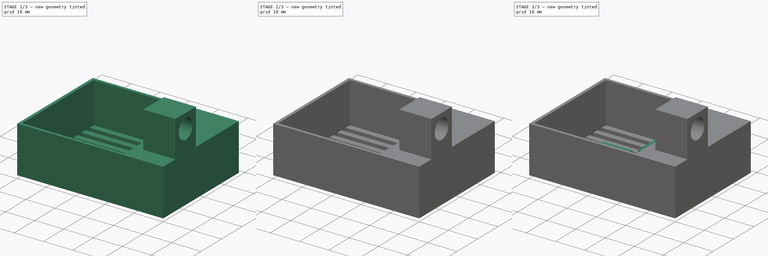
[diagram: build sequence overview — one tinted view per stage of 3, left to right]
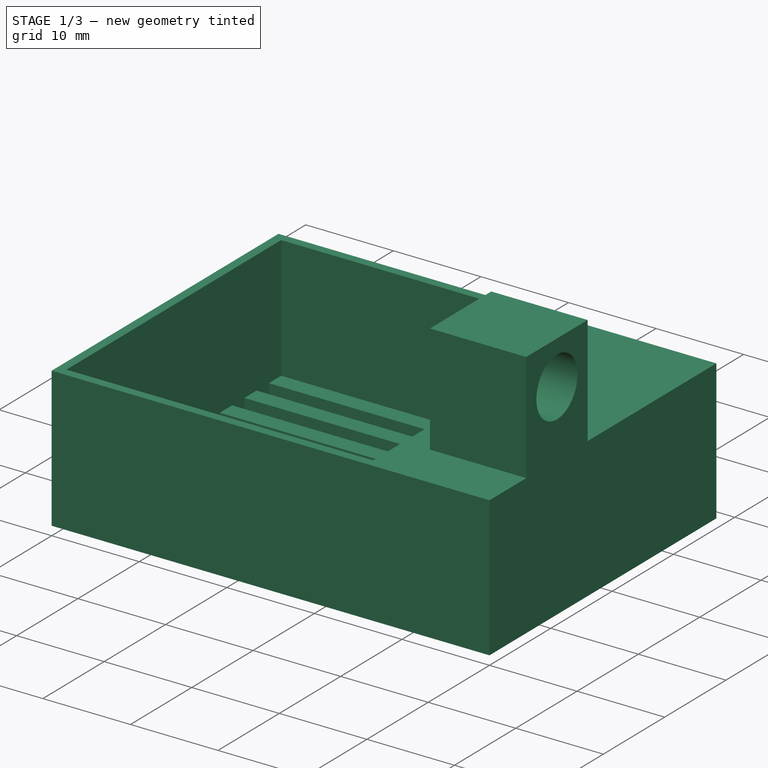
[diagram: stage 1 of 3 — iso view after this stage's code; geometry added in this stage tinted green]
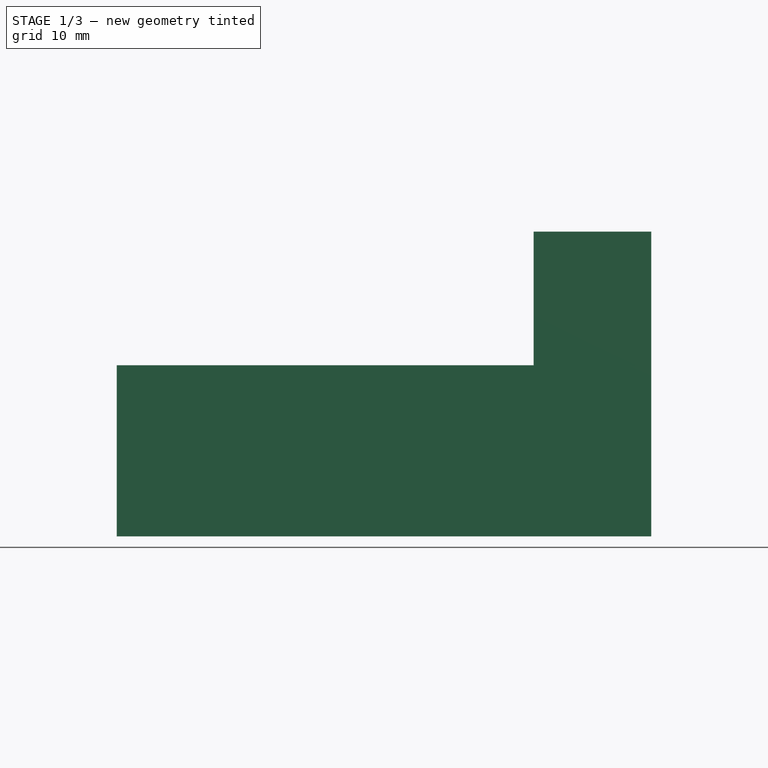
[diagram: stage 1 of 3 — front view after this stage's code; geometry added in this stage tinted green]
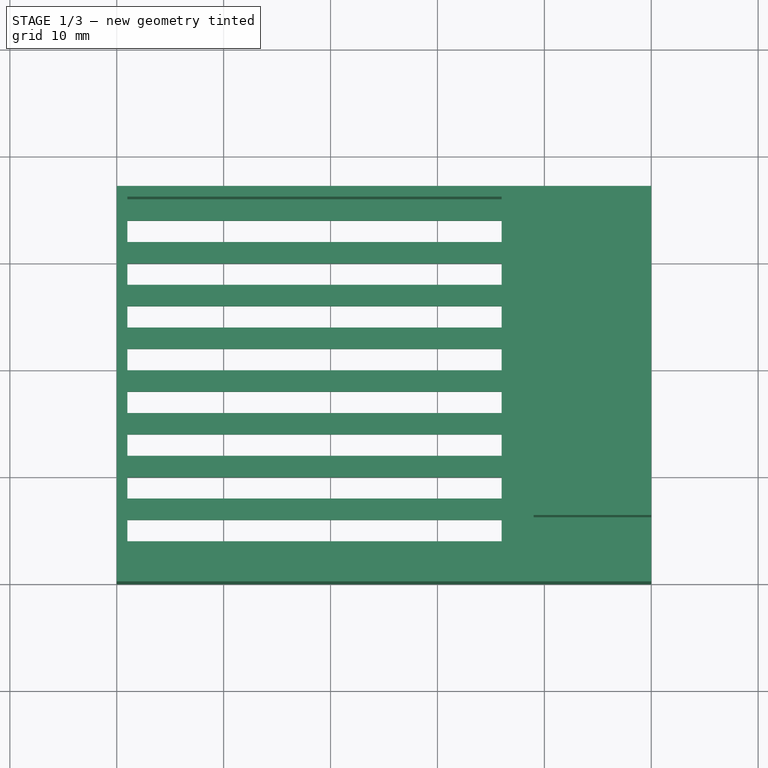
[diagram: stage 1 of 3 — top view after this stage's code; geometry added in this stage tinted green]
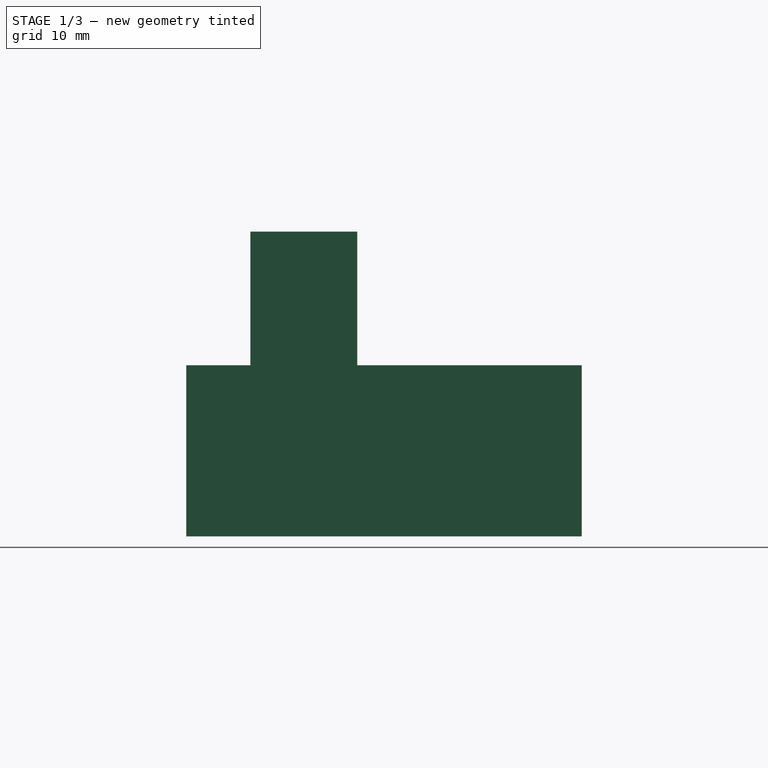
[diagram: stage 1 of 3 — right view after this stage's code; geometry added in this stage tinted green]
FCSTD DOCUMENT  (FreeCAD 0.20R29603 (Git))
Label: galvo_laser_holder
License: All rights reserved
LicenseURL: http://en.wikipedia.org/wiki/All_rights_reserved
objects: Sketcher::SketchObject×3, PartDesign::AdditiveBox×2, PartDesign::SubtractiveCylinder×2, PartDesign::Pad×2, PartDesign::SubtractiveBox×1, PartDesign::Pocket×1, PartDesign::AdditiveCylinder×1, PartDesign::Body×1
note: 22 computed .brp shape members not serialized (recipe doc carries the construction recipe); baked Part::Feature solids carry a one-line shape summary decoded from their .brp

FEATURE [PartDesign::AdditiveBox] Box  label="base"
  AttacherType = Attacher::AttachEngine3D
  Height = 16
  Length = 50
  MapMode = 2
  Support = -> [X_Axis]
  Width = 37
FEATURE [PartDesign::SubtractiveBox] Box001  label="galvo_holder"
  AttacherType = Attacher::AttachEngine3D
  AttachmentOffset = pos=(1,1,-14) rot=(0,0,1;0rad)
  BaseFeature = -> Box
  Height = 20
  Length = 35
  MapMode = 5
  Placement = pos=(1,1,2) rot=(0,0,1;0rad)
  Support = -> [Box]
  Width = 35
FEATURE [PartDesign::AdditiveBox] Box002  label="laser_holder"
  AttacherType = Attacher::AttachEngine3D
  AttachmentOffset = pos=(38,5,0) rot=(0,0,1;0rad)
  BaseFeature = -> Box001
  Height = 12.5
  Length = 11
  MapMode = 5
  Placement = pos=(39,6,16) rot=(0,0,1;0rad)
  Support = -> [Box001]
  Width = 10
FEATURE [PartDesign::SubtractiveCylinder] Cylinder  label="laser_holder_inner"
  Angle = 360
  AttacherType = Attacher::AttachEngine3D
  AttachmentOffset = pos=(5,7.5,-22) rot=(0,0,1;0rad)
  BaseFeature = -> Box002
  FirstAngle = 0
  Height = 22
  MapMode = 5
  Placement = pos=(28,11,23.5) rot=(0.57735,0.57735,0.57735;2.0944rad)
  Radius = 3.35
  SecondAngle = 0
  Support = -> [Box002]
FEATURE [Sketcher::SketchObject] Sketch
  ExternalGeometry = -> [Cylinder]
  FullyConstrained = false
  MapMode = 2
  Placement = pos=(38,13.1,2) rot=(0,0,-1;1.5708rad)
  Support = -> [Sketch]
  sketch-geometry (44):
    g0: LineSegment StartX=-20.9 StartY=-1 StartZ=0 EndX=-18.9 EndY=-1 EndZ=0
    g1: LineSegment StartX=-18.9 StartY=-1 StartZ=0 EndX=-18.9 EndY=-37 EndZ=0
    g2: LineSegment StartX=-18.9 StartY=-37 StartZ=0 EndX=-20.9 EndY=-37 EndZ=0
    g3: LineSegment StartX=-20.9 StartY=-37 StartZ=0 EndX=-20.9 EndY=-1 EndZ=0
    g4: LineSegment StartX=-20.9 StartY=-1 StartZ=0 EndX=-20.9277 EndY=0.0589039 EndZ=0
    g5: LineSegment StartX=-15.2185 StartY=-0.771573 StartZ=0 EndX=-15.2462 EndY=0.287331 EndZ=0
    g6: LineSegment StartX=-9.4363 StartY=1.13668 StartZ=0 EndX=-9.46398 EndY=2.19558 EndZ=0
    g7: LineSegment StartX=7.06504 StartY=4.32683 StartZ=0 EndX=7.03736 EndY=5.38574 EndZ=0
    g8: LineSegment StartX=13.3382 StartY=5.34808 StartZ=0 EndX=13.3105 EndY=6.40698 EndZ=0
    g9: LineSegment StartX=-16.9 StartY=-1 StartZ=0 EndX=-14.9 EndY=-1 EndZ=0
    g10: LineSegment StartX=-14.9 StartY=-1 StartZ=0 EndX=-14.9 EndY=-37 EndZ=0
    g11: LineSegment StartX=-14.9 StartY=-37 StartZ=0 EndX=-16.9 EndY=-37 EndZ=0
    g12: LineSegment StartX=-16.9 StartY=-37 StartZ=0 EndX=-16.9 EndY=-1 EndZ=0
    g13: LineSegment StartX=-20.9 StartY=-1 StartZ=0 EndX=-16.9 EndY=-1 EndZ=0
    g14: LineSegment StartX=-12.9 StartY=-1 StartZ=0 EndX=-10.9 EndY=-1 EndZ=0
    g15: LineSegment StartX=-10.9 StartY=-1 StartZ=0 EndX=-10.9 EndY=-37 EndZ=0
    g16: LineSegment StartX=-10.9 StartY=-37 StartZ=0 EndX=-12.9 EndY=-37 EndZ=0
    g17: LineSegment StartX=-12.9 StartY=-37 StartZ=0 EndX=-12.9 EndY=-1 EndZ=0
    g18: LineSegment StartX=-16.9 StartY=-1 StartZ=0 EndX=-12.9 EndY=-1 EndZ=0
    g19: LineSegment StartX=-8.9 StartY=-1 StartZ=0 EndX=-6.9 EndY=-1 EndZ=0
    g20: LineSegment StartX=-6.9 StartY=-1 StartZ=0 EndX=-6.9 EndY=-37 EndZ=0
    g21: LineSegment StartX=-6.9 StartY=-37 StartZ=0 EndX=-8.9 EndY=-37 EndZ=0
    g22: LineSegment StartX=-8.9 StartY=-37 StartZ=0 EndX=-8.9 EndY=-1 EndZ=0
    g23: LineSegment StartX=-12.9 StartY=-1 StartZ=0 EndX=-8.9 EndY=-1 EndZ=0
    g24: LineSegment StartX=-4.9 StartY=-1 StartZ=0 EndX=-2.9 EndY=-1 EndZ=0
    g25: LineSegment StartX=-2.9 StartY=-1 StartZ=0 EndX=-2.9 EndY=-37 EndZ=0
    g26: LineSegment StartX=-2.9 StartY=-37 StartZ=0 EndX=-4.9 EndY=-37 EndZ=0
    g27: LineSegment StartX=-4.9 StartY=-37 StartZ=0 EndX=-4.9 EndY=-1 EndZ=0
    g28: LineSegment StartX=-8.9 StartY=-1 StartZ=0 EndX=-4.9 EndY=-1 EndZ=0
    g29: LineSegment StartX=-0.9 StartY=-1 StartZ=0 EndX=1.1 EndY=-1 EndZ=0
    g30: LineSegment StartX=1.1 StartY=-1 StartZ=0 EndX=1.1 EndY=-37 EndZ=0
    g31: LineSegment StartX=1.1 StartY=-37 StartZ=0 EndX=-0.9 EndY=-37 EndZ=0
    g32: LineSegment StartX=-0.9 StartY=-37 StartZ=0 EndX=-0.9 EndY=-1 EndZ=0
    g33: LineSegment StartX=-4.9 StartY=-1 StartZ=0 EndX=-0.9 EndY=-1 EndZ=0
    g34: LineSegment StartX=3.1 StartY=-1 StartZ=0 EndX=5.1 EndY=-1 EndZ=0
    g35: LineSegment StartX=5.1 StartY=-1 StartZ=0 EndX=5.1 EndY=-37 EndZ=0
    g36: LineSegment StartX=5.1 StartY=-37 StartZ=0 EndX=3.1 EndY=-37 EndZ=0
    g37: LineSegment StartX=3.1 StartY=-37 StartZ=0 EndX=3.1 EndY=-1 EndZ=0
    g38: LineSegment StartX=-0.9 StartY=-1 StartZ=0 EndX=3.1 EndY=-1 EndZ=0
    g39: LineSegment StartX=7.1 StartY=-1 StartZ=0 EndX=9.1 EndY=-1 EndZ=0
    g40: LineSegment StartX=9.1 StartY=-1 StartZ=0 EndX=9.1 EndY=-37 EndZ=0
    g41: LineSegment StartX=9.1 StartY=-37 StartZ=0 EndX=7.1 EndY=-37 EndZ=0
    g42: LineSegment StartX=7.1 StartY=-37 StartZ=0 EndX=7.1 EndY=-1 EndZ=0
    g43: LineSegment StartX=3.1 StartY=-1 StartZ=0 EndX=7.1 EndY=-1 EndZ=0
  constraints (117):
    c: Coincident(g0,g1)
    c: Coincident(g1,g2)
    c: Coincident(g2,g3)
    c: Coincident(g3,g0)
    c: Horizontal(g0)
    c: Horizontal(g2)
    c: Vertical(g1)
    c: Vertical(g3)
    c: DistanceX(g0,g0) = 2
    c: DistanceY(g3,g3) = 36
    c: Coincident(g0,g4)
    c: Equal(g4,g5)
    c: Parallel(g5,g4)
    c: Equal(g4,g6)
    c: Parallel(g6,g4)
    c: Equal(g4,g7)
    c: Parallel(g7,g4)
    c: Equal(g4,g8)
    c: Parallel(g8,g4)
    c: Coincident(g9,g10)
    c: Coincident(g10,g11)
    c: Coincident(g11,g12)
    c: Coincident(g12,g9)
    c: Horizontal(g9)
    c: Horizontal(g11)
    c: Vertical(g10)
    c: Vertical(g12)
    c: DistanceX(g9,g9) = 2
    c: DistanceY(g12,g12) = 36
    c: Coincident(g0,g13)
    c: Coincident(g9,g13)
    c: Distance(g13) = 4
    c: Angle(g13) = 0
    c: Coincident(g14,g15)
    c: Coincident(g15,g16)
    c: Coincident(g16,g17)
    c: Coincident(g17,g14)
    c: Horizontal(g14)
    c: Horizontal(g16)
    c: Vertical(g15)
    c: Vertical(g17)
    c: DistanceX(g14,g14) = 2
    c: DistanceY(g17,g17) = 36
    c: Coincident(g9,g18)
    c: Coincident(g14,g18)
    c: Equal(g13,g18)
    c: Parallel(g18,g13)
    c: Coincident(g19,g20)
    c: Coincident(g20,g21)
    c: Coincident(g21,g22)
    c: Coincident(g22,g19)
    c: Horizontal(g19)
    c: Horizontal(g21)
    c: Vertical(g20)
    c: Vertical(g22)
    c: DistanceX(g19,g19) = 2
    c: DistanceY(g22,g22) = 36
    c: Coincident(g14,g23)
    c: Coincident(g19,g23)
    c: Equal(g13,g23)
    c: Parallel(g23,g13)
    c: Coincident(g24,g25)
    c: Coincident(g25,g26)
    c: Coincident(g26,g27)
    c: Coincident(g27,g24)
    c: Horizontal(g24)
    c: Horizontal(g26)
    c: Vertical(g25)
    c: Vertical(g27)
    c: DistanceX(g24,g24) = 2
    c: DistanceY(g27,g27) = 36
    c: Coincident(g19,g28)
    c: Coincident(g24,g28)
    c: Equal(g13,g28)
    c: Parallel(g28,g13)
    c: Coincident(g29,g30)
    c: Coincident(g30,g31)
    c: Coincident(g31,g32)
    c: Coincident(g32,g29)
    c: Horizontal(g29)
    c: Horizontal(g31)
    c: Vertical(g30)
    c: Vertical(g32)
    c: DistanceX(g29,g29) = 2
    c: DistanceY(g32,g32) = 36
    c: Coincident(g24,g33)
    c: Coincident(g29,g33)
    c: Equal(g13,g33)
    c: Parallel(g33,g13)
    c: Coincident(g34,g35)
    c: Coincident(g35,g36)
    c: Coincident(g36,g37)
    c: Coincident(g37,g34)
    c: Horizontal(g34)
    c: Horizontal(g36)
    c: Vertical(g35)
    c: Vertical(g37)
    c: DistanceX(g34,g34) = 2
    c: DistanceY(g37,g37) = 36
    c: Coincident(g29,g38)
    c: Coincident(g34,g38)
    c: Equal(g13,g38)
    c: Parallel(g38,g13)
    c: Coincident(g39,g40)
    c: Coincident(g40,g41)
    c: Coincident(g41,g42)
    c: Coincident(g42,g39)
    c: Horizontal(g39)
    c: Horizontal(g41)
    c: Vertical(g40)
    c: Vertical(g42)
    c: DistanceX(g39,g39) = 2
    c: DistanceY(g42,g42) = 36
    c: Coincident(g34,g43)
    c: Coincident(g39,g43)
    c: Equal(g13,g43)
    c: Parallel(g43,g13)
FEATURE [PartDesign::Pocket] Pocket  label="galvo_ventilation"
  BaseFeature = -> Cylinder
  Direction = (0,0,-1)
  Length = 5
  Length2 = 5
  Placement = pos=(28,11,23.5) rot=(0.57735,0.57735,0.57735;2.0944rad)
  Profile = -> Sketch
  ReferenceAxis = -> Sketch [N_Axis]
  Type = 0
FEATURE [PartDesign::AdditiveCylinder] Cylinder001  label="laser_holder_lid"
  Angle = 360
  AttacherType = Attacher::AttachEngine3D
  BaseFeature = -> Pocket
  FirstAngle = 0
  Height = 1
  MapMode = 5
  Placement = pos=(39,11,23.5) rot=(-0.57735,0.57735,-0.57735;2.0944rad)
  Radius = 3.35
  SecondAngle = 0
  Support = -> [Pocket]
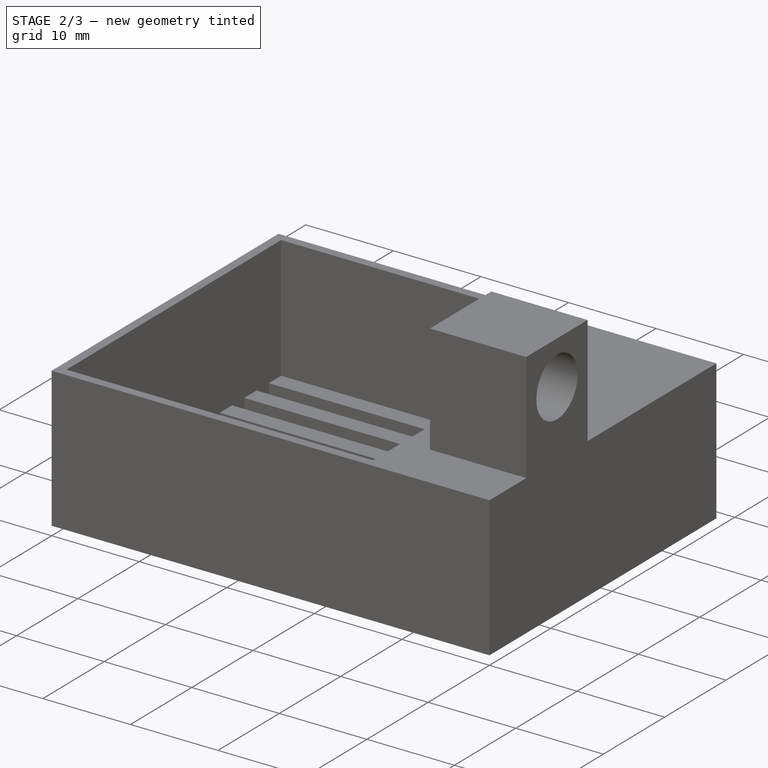
[diagram: stage 2 of 3 — iso view after this stage's code; geometry added in this stage tinted green]
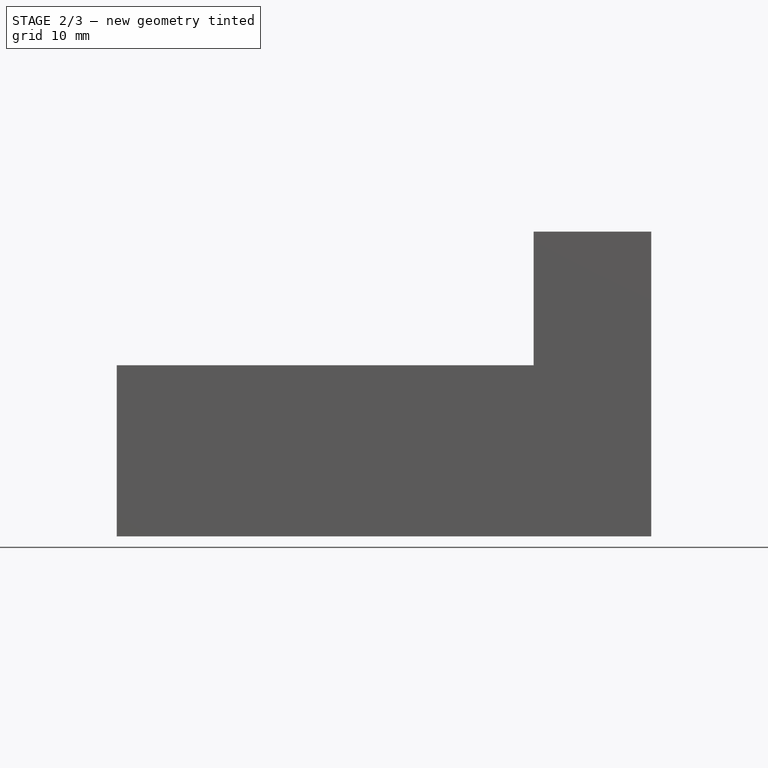
[diagram: stage 2 of 3 — front view after this stage's code; geometry added in this stage tinted green]
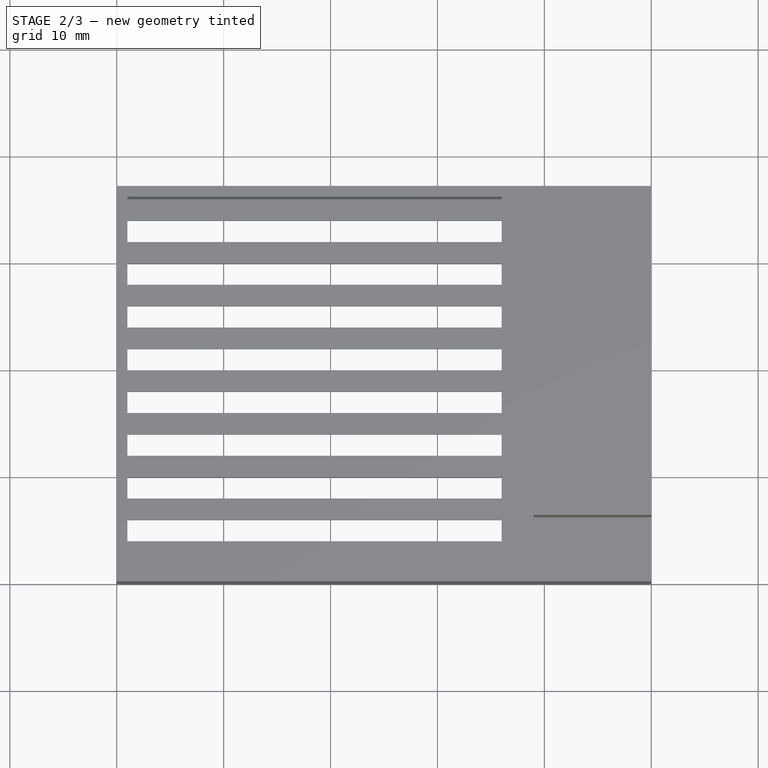
[diagram: stage 2 of 3 — top view after this stage's code; geometry added in this stage tinted green]
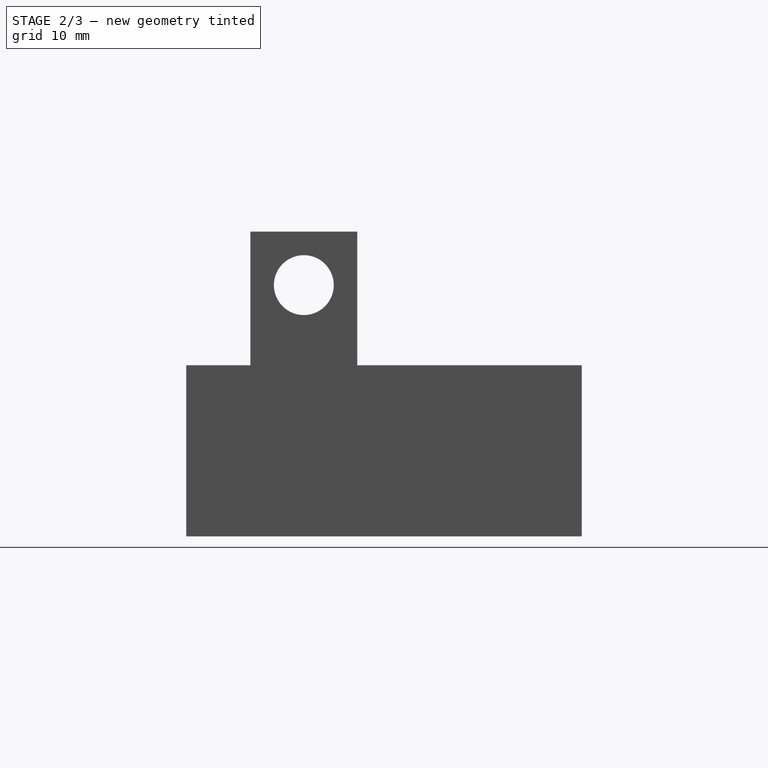
[diagram: stage 2 of 3 — right view after this stage's code; geometry added in this stage tinted green]
FEATURE [PartDesign::SubtractiveCylinder] Cylinder002  label="laser_holder_lid_inner"
  Angle = 360
  AttacherType = Attacher::AttachEngine3D
  BaseFeature = -> Cylinder001
  FirstAngle = 0
  Height = 1
  MapMode = 5
  Placement = pos=(40,11,23.5) rot=(0.57735,0.57735,-0.57735;4.18879rad)
  Radius = 2.8
  SecondAngle = 0
  Support = -> [Cylinder001]
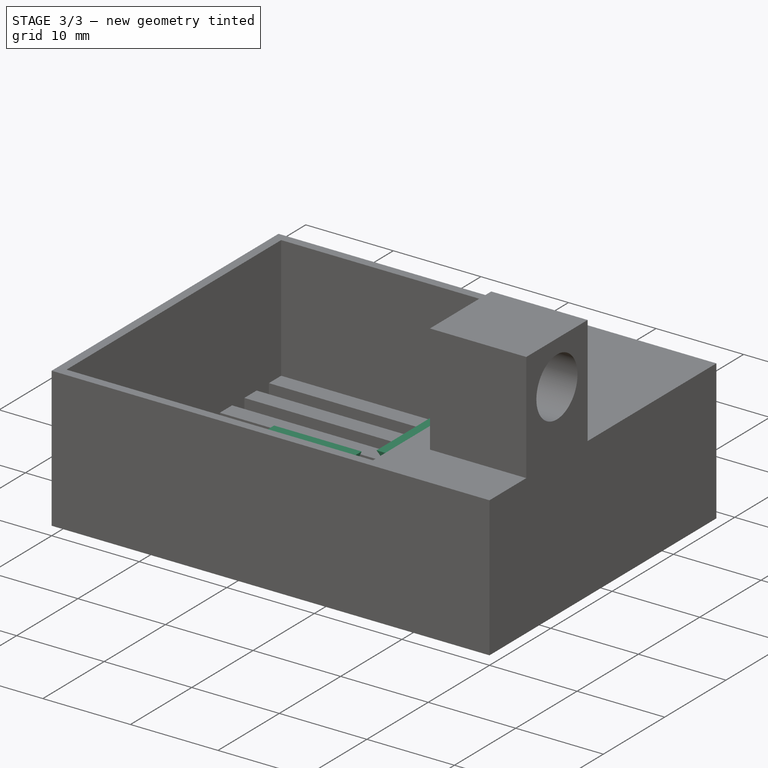
[diagram: stage 3 of 3 — iso view after this stage's code; geometry added in this stage tinted green]
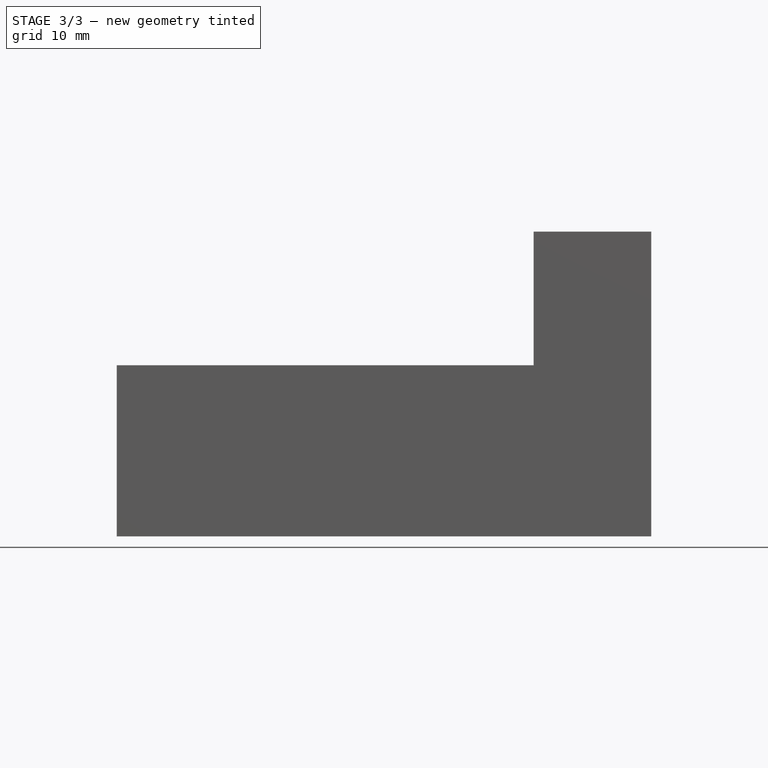
[diagram: stage 3 of 3 — front view after this stage's code; geometry added in this stage tinted green]
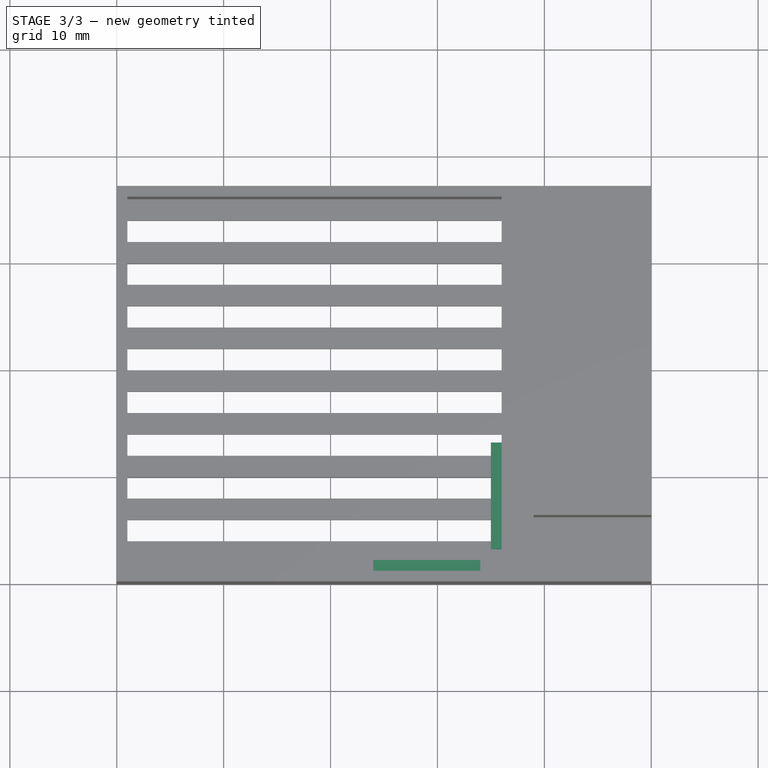
[diagram: stage 3 of 3 — top view after this stage's code; geometry added in this stage tinted green]
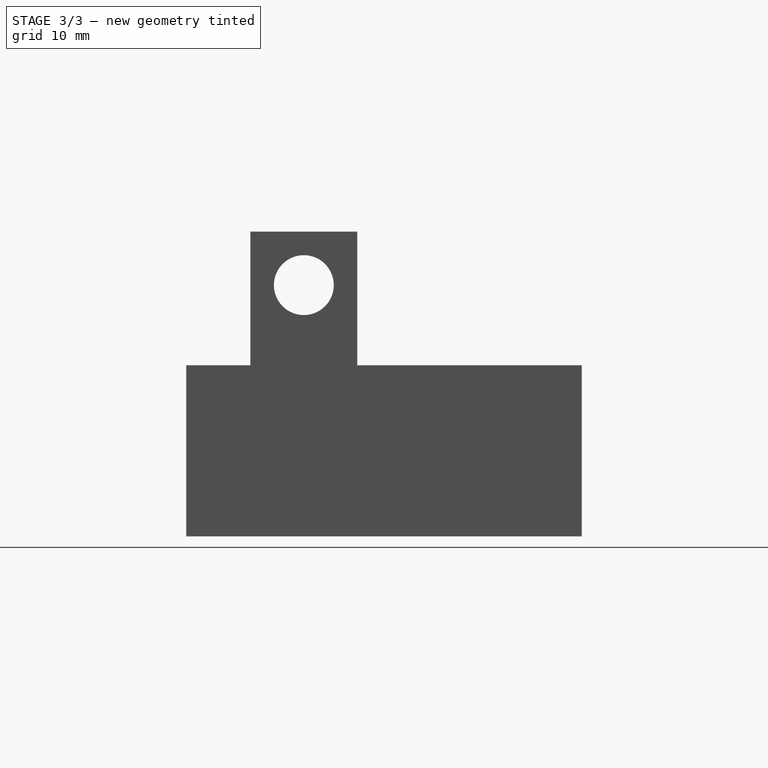
[diagram: stage 3 of 3 — right view after this stage's code; geometry added in this stage tinted green]
FEATURE [Sketcher::SketchObject] Sketch002
  AttachmentOffset = pos=(0,0,2) rot=(0,0,1;0rad)
  ExternalGeometry = -> [Cylinder002]
  FullyConstrained = true
  MapMode = 5
  Placement = pos=(34,11,23.5) rot=(0.57735,0.57735,-0.57735;4.18879rad)
  Support = -> [Cylinder002]
  sketch-geometry (3):
    g0: LineSegment StartX=-10 StartY=7.5 StartZ=0 EndX=-9 EndY=7.5 EndZ=0
    g1: LineSegment StartX=-10 StartY=7.5 StartZ=0 EndX=-10 EndY=8.5 EndZ=0
    g2: LineSegment StartX=-9 StartY=7.5 StartZ=0 EndX=-10 EndY=8.5 EndZ=0
  constraints (8):
    c: Coincident(g0,g-5)
    c: PointOnObject(g0,g-4)
    c: Coincident(g1,g0)
    c: PointOnObject(g1,g-5)
    c: Coincident(g2,g0)
    c: Coincident(g2,g1)
    c: Equal(g0,g1)
    c: DistanceX(g0,g0) = 1
FEATURE [PartDesign::Pad] Pad  label="clip"
  BaseFeature = -> Cylinder002
  Direction = (-1,0,-4e-16)
  Length = 10
  Length2 = 10
  Placement = pos=(40,11,23.5) rot=(0.57735,0.57735,-0.57735;4.18879rad)
  Profile = -> Sketch002
  ReferenceAxis = -> Sketch002 [N_Axis]
  Type = 0
FEATURE [Sketcher::SketchObject] Sketch003
  AttachmentOffset = pos=(0,0,2) rot=(0,0,1;0rad)
  ExternalGeometry = -> [Pad]
  FullyConstrained = true
  MapMode = 5
  Placement = pos=(40,3,23.5) rot=(-0.57735,0.57735,0.57735;2.0944rad)
  Support = -> [Pad]
  sketch-geometry (3):
    g0: LineSegment StartX=7.5 StartY=4 StartZ=0 EndX=7.5 EndY=5 EndZ=0
    g1: LineSegment StartX=7.5 StartY=4 StartZ=0 EndX=8.5 EndY=4 EndZ=0
    g2: LineSegment StartX=8.5 StartY=4 StartZ=0 EndX=7.5 EndY=5 EndZ=0
  constraints (8):
    c: Coincident(g0,g-4)
    c: PointOnObject(g0,g-3)
    c: Coincident(g1,g0)
    c: PointOnObject(g1,g-4)
    c: Coincident(g2,g1)
    c: Coincident(g2,g0)
    c: DistanceY(g0,g0) = 1
    c: DistanceX(g1,g1) = 1
FEATURE [PartDesign::Pad] Pad001
  BaseFeature = -> Pad
  Direction = (0,1,2e-16)
  Length = 10
  Length2 = 10
  Placement = pos=(40,11,23.5) rot=(0.57735,0.57735,-0.57735;4.18879rad)
  Profile = -> Sketch003
  ReferenceAxis = -> Sketch003 [N_Axis]
  Type = 0
FEATURE [PartDesign::Body] Body
  Group = -> [Box,Box001,Box002,Cylinder,Sketch,Pocket,Cylinder001,Cylinder002,Sketch002,Pad,Sketch003,Pad001]
  Origin = -> Origin
  Tip = -> Pad001
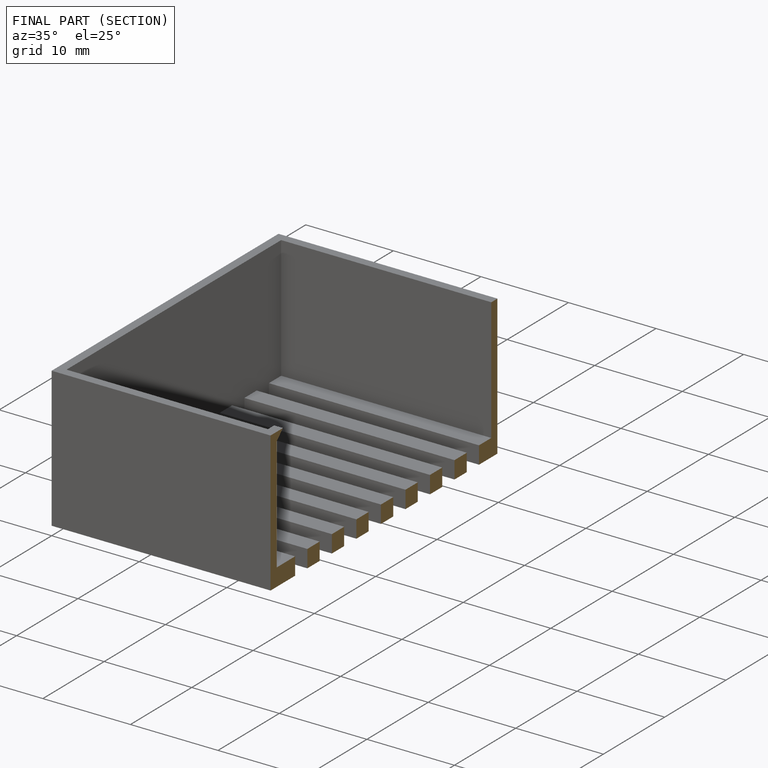
[diagram: finished part — half-section view (interior)]
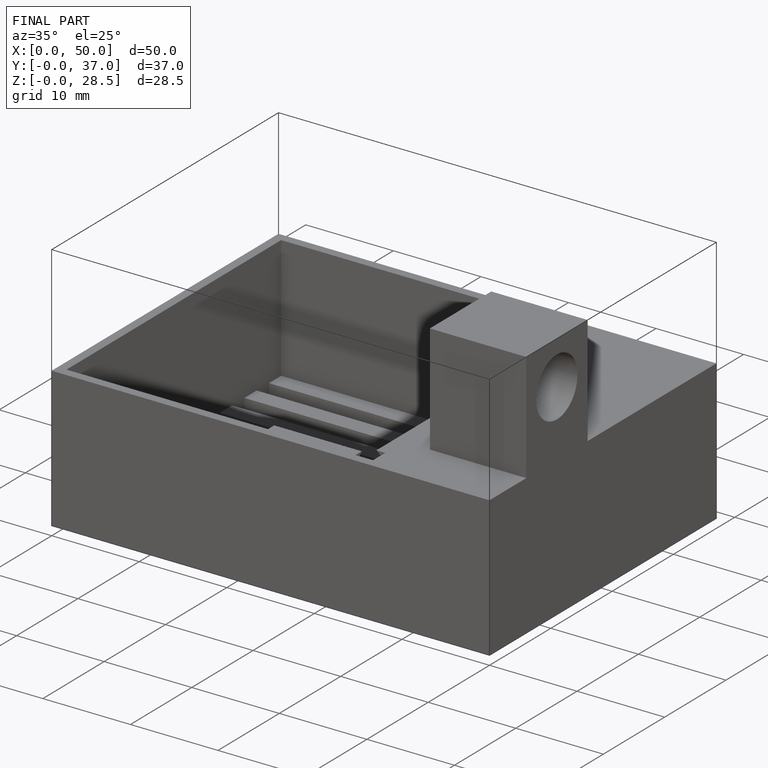
[diagram: finished part — iso view with bounding-box wireframe]
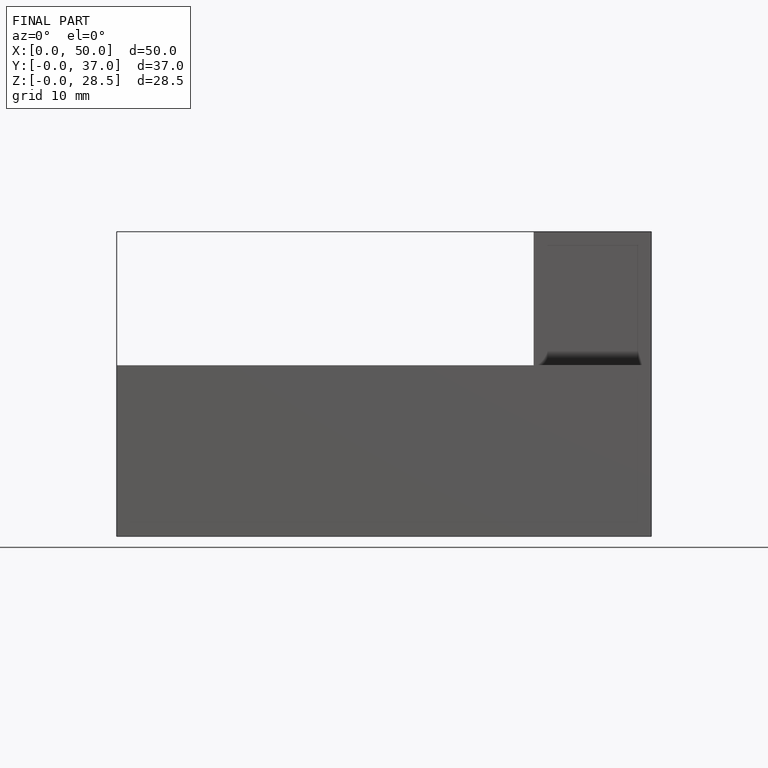
[diagram: finished part — front view with bounding-box wireframe]
